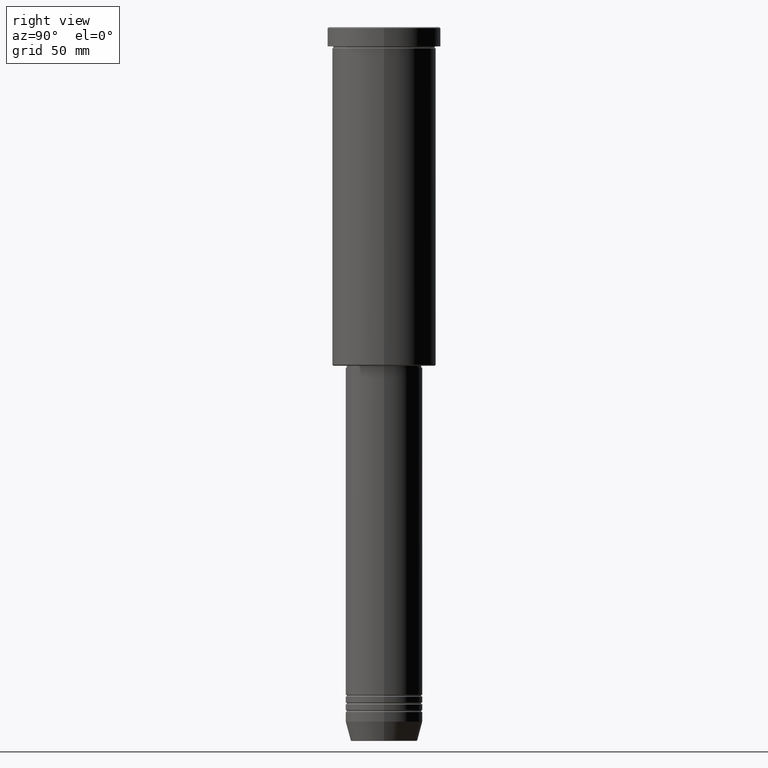
[diagram: clean part render]
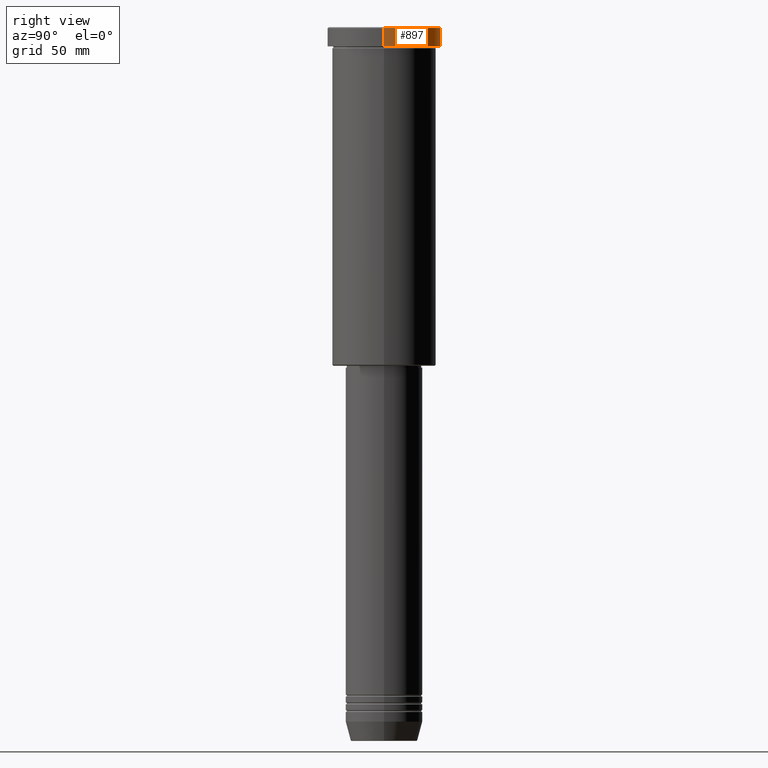
[diagram: same view with one face highlighted and labeled with its STEP entity id]
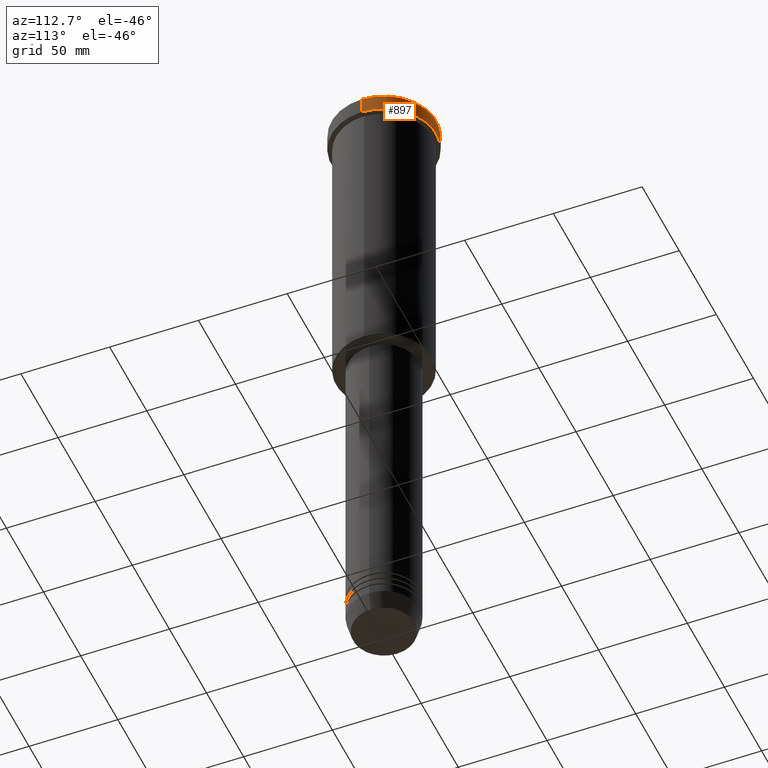
[diagram: same view with one face highlighted and labeled with its STEP entity id]
A machine part, right view. The second image highlights one B-rep face of the part: STEP entity #897.
A second angle (auxiliary view) of the same face is appended — the face is thin or edge-on in the first view.
In plain terms, the highlighted cylindrical surface (partial cylindrical patch) has radius 29.5 mm, axis along (-0, -0, 1).
Its self-contained STEP definition (entity closure, byte-faithful):
#71 = VECTOR ( 'NONE', #972, 1000.000000000000000 ) ;
#94 = DIRECTION ( 'NONE',  ( -0.000000000000000000, -0.000000000000000000, 1.000000000000000000 ) ) ;
#153 = AXIS2_PLACEMENT_3D ( 'NONE', #239, #758, #323 ) ;
#164 = VERTEX_POINT ( 'NONE', #280 ) ;
#222 = CARTESIAN_POINT ( 'NONE',  ( -29.50000000000000000, 3.612708057484691604E-15, -0.5000000000000004441 ) ) ;
#239 = CARTESIAN_POINT ( 'NONE',  ( 0.000000000000000000, 0.000000000000000000, -0.5000000000000004441 ) ) ;
#244 = EDGE_CURVE ( 'NONE', #951, #365, #1168, .T. ) ;
#279 = CARTESIAN_POINT ( 'NONE',  ( -29.50000000000000000, 3.612708057484691604E-15, 0.000000000000000000 ) ) ;
#280 = CARTESIAN_POINT ( 'NONE',  ( 29.50000000000000000, 0.000000000000000000, -9.999999999999992895 ) ) ;
#323 = DIRECTION ( 'NONE',  ( 1.000000000000000000, 0.000000000000000000, 0.000000000000000000 ) ) ;
#325 = ORIENTED_EDGE ( 'NONE', *, *, #688, .T. ) ;
#365 = VERTEX_POINT ( 'NONE', #222 ) ;
#411 = CIRCLE ( 'NONE', #532, 29.50000000000000000 ) ;
#514 = ORIENTED_EDGE ( 'NONE', *, *, #244, .T. ) ;
#532 = AXIS2_PLACEMENT_3D ( 'NONE', #786, #94, #797 ) ;
#565 = CARTESIAN_POINT ( 'NONE',  ( 29.50000000000000000, 0.000000000000000000, -0.5000000000000004441 ) ) ;
#567 = CARTESIAN_POINT ( 'NONE',  ( 29.50000000000000000, 0.000000000000000000, 0.000000000000000000 ) ) ;
#579 = DIRECTION ( 'NONE',  ( -0.000000000000000000, -0.000000000000000000, 1.000000000000000000 ) ) ;
#610 = CYLINDRICAL_SURFACE ( 'NONE', #1129, 29.50000000000000000 ) ;
#667 = CIRCLE ( 'NONE', #153, 29.50000000000000000 ) ;
#688 = EDGE_CURVE ( 'NONE', #365, #1132, #667, .T. ) ;
#699 = VECTOR ( 'NONE', #579, 1000.000000000000000 ) ;
#712 = FACE_OUTER_BOUND ( 'NONE', #1130, .T. ) ;
#725 = EDGE_CURVE ( 'NONE', #164, #1132, #1031, .T. ) ;
#758 = DIRECTION ( 'NONE',  ( 0.000000000000000000, 0.000000000000000000, -1.000000000000000000 ) ) ;
#786 = CARTESIAN_POINT ( 'NONE',  ( 0.000000000000000000, 0.000000000000000000, -9.999999999999992895 ) ) ;
#797 = DIRECTION ( 'NONE',  ( 1.000000000000000000, 0.000000000000000000, 0.000000000000000000 ) ) ;
#897 = ADVANCED_FACE ( 'NONE', ( #712 ), #610, .T. ) ;
#901 = CARTESIAN_POINT ( 'NONE',  ( -29.50000000000000000, 3.612708057484691604E-15, -9.999999999999992895 ) ) ;
#917 = EDGE_CURVE ( 'NONE', #164, #951, #411, .T. ) ;
#951 = VERTEX_POINT ( 'NONE', #901 ) ;
#970 = DIRECTION ( 'NONE',  ( -0.000000000000000000, -0.000000000000000000, 1.000000000000000000 ) ) ;
#972 = DIRECTION ( 'NONE',  ( -0.000000000000000000, -0.000000000000000000, 1.000000000000000000 ) ) ;
#990 = DIRECTION ( 'NONE',  ( 1.000000000000000000, 0.000000000000000000, 0.000000000000000000 ) ) ;
#1031 = LINE ( 'NONE', #567, #699 ) ;
#1046 = ORIENTED_EDGE ( 'NONE', *, *, #725, .F. ) ;
#1075 = CARTESIAN_POINT ( 'NONE',  ( 0.000000000000000000, 0.000000000000000000, 0.000000000000000000 ) ) ;
#1076 = ORIENTED_EDGE ( 'NONE', *, *, #917, .T. ) ;
#1129 = AXIS2_PLACEMENT_3D ( 'NONE', #1075, #970, #990 ) ;
#1130 = EDGE_LOOP ( 'NONE', ( #1076, #514, #325, #1046 ) ) ;
#1132 = VERTEX_POINT ( 'NONE', #565 ) ;
#1168 = LINE ( 'NONE', #279, #71 ) ;